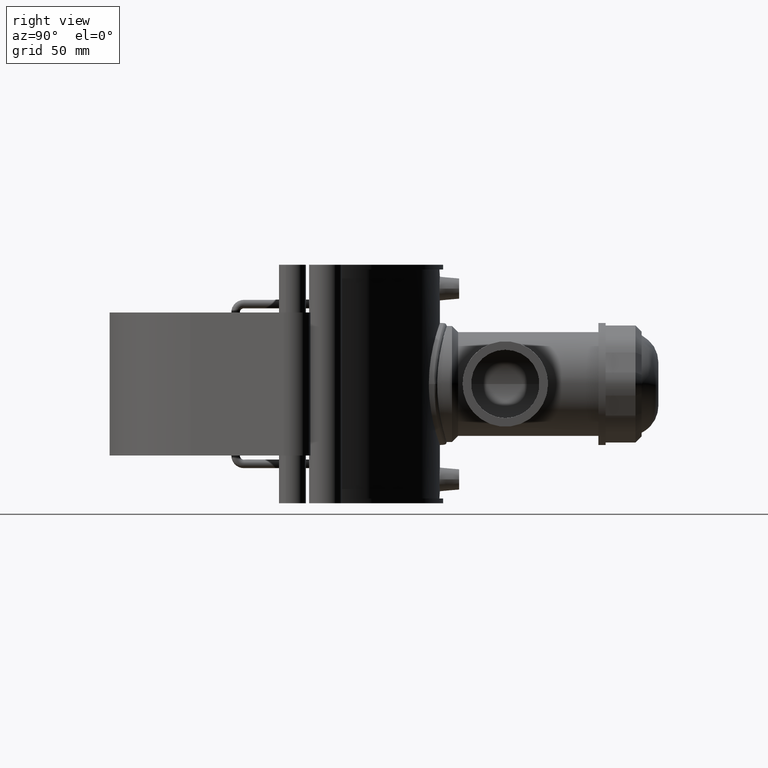
[diagram: clean part render]
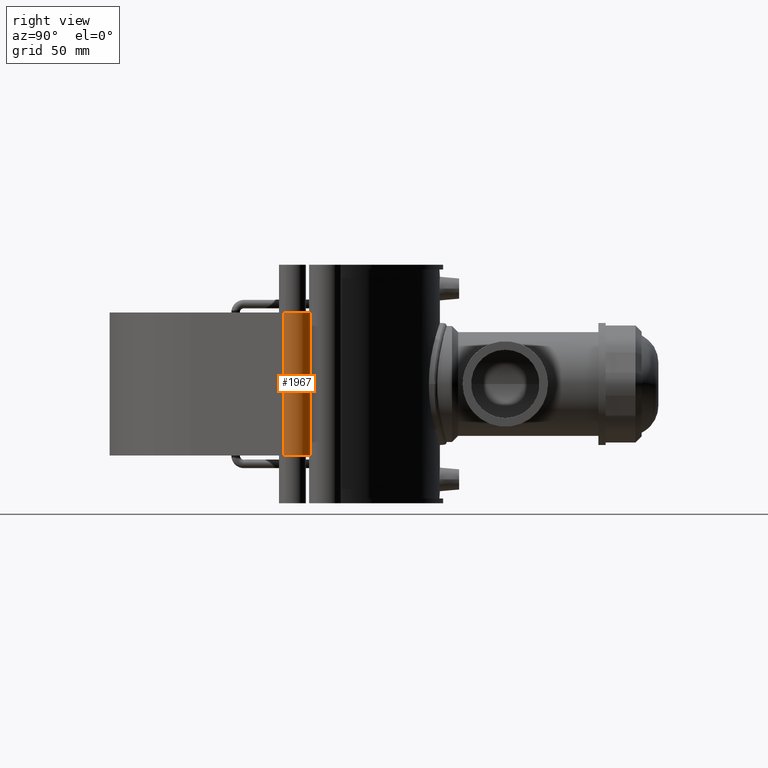
[diagram: same view with one face highlighted and labeled with its STEP entity id]
A machine part, right view. The second image highlights one B-rep face of the part: STEP entity #1967.
In plain terms, the highlighted cylindrical surface (edge-blend (fillet) strip) has radius 13.3269 mm, axis along (0, 0, 1).
Its self-contained STEP definition (entity closure, byte-faithful):
#188=LINE('',#3607,#349);
#189=LINE('',#3609,#350);
#349=VECTOR('',#2683,105.6);
#350=VECTOR('',#2686,105.6);
#439=CYLINDRICAL_SURFACE('',#2163,13.3269230769231);
#546=FACE_OUTER_BOUND('',#688,.T.);
#688=EDGE_LOOP('',(#1715,#1716,#1717,#1718));
#768=CIRCLE('',#2081,13.3269230769231);
#778=CIRCLE('',#2092,13.3269230769231);
#889=VERTEX_POINT('',#3344);
#890=VERTEX_POINT('',#3346);
#908=VERTEX_POINT('',#3384);
#909=VERTEX_POINT('',#3386);
#1103=EDGE_CURVE('',#889,#890,#768,.T.);
#1123=EDGE_CURVE('',#908,#909,#778,.T.);
#1230=EDGE_CURVE('',#889,#909,#188,.T.);
#1231=EDGE_CURVE('',#890,#908,#189,.T.);
#1715=ORIENTED_EDGE('',*,*,#1230,.T.);
#1716=ORIENTED_EDGE('',*,*,#1123,.F.);
#1717=ORIENTED_EDGE('',*,*,#1231,.F.);
#1718=ORIENTED_EDGE('',*,*,#1103,.F.);
#1967=ADVANCED_FACE('',(#546),#439,.T.);
#2081=AXIS2_PLACEMENT_3D('',#3347,#2443,#2444);
#2092=AXIS2_PLACEMENT_3D('',#3387,#2475,#2476);
#2163=AXIS2_PLACEMENT_3D('',#3619,#2700,#2701);
#2443=DIRECTION('center_axis',(0.,0.,-1.));
#2444=DIRECTION('ref_axis',(0.333937766224141,-0.942595124265573,0.));
#2475=DIRECTION('center_axis',(0.,0.,1.));
#2476=DIRECTION('ref_axis',(0.333937766224141,-0.942595124265573,0.));
#2683=DIRECTION('',(0.,0.,1.));
#2686=DIRECTION('',(0.,0.,1.));
#2700=DIRECTION('center_axis',(0.,0.,1.));
#2701=DIRECTION('ref_axis',(0.333937766224141,-0.942595124265573,0.));
#3344=CARTESIAN_POINT('',(123.949690676323,32.2455886969886,-52.8));
#3346=CARTESIAN_POINT('',(139.405466655161,13.0445520356437,-52.8));
#3347=CARTESIAN_POINT('Origin',(127.727213942907,19.4652445440072,-52.8));
#3384=CARTESIAN_POINT('',(139.405466655161,13.0445520356437,52.8));
#3386=CARTESIAN_POINT('',(123.949690676323,32.2455886969886,52.8));
#3387=CARTESIAN_POINT('Origin',(127.727213942907,19.4652445440072,52.8));
#3607=CARTESIAN_POINT('',(123.949690676323,32.2455886969886,0.));
#3609=CARTESIAN_POINT('',(139.405466655161,13.0445520356437,0.));
#3619=CARTESIAN_POINT('Origin',(127.727213942907,19.4652445440072,0.));